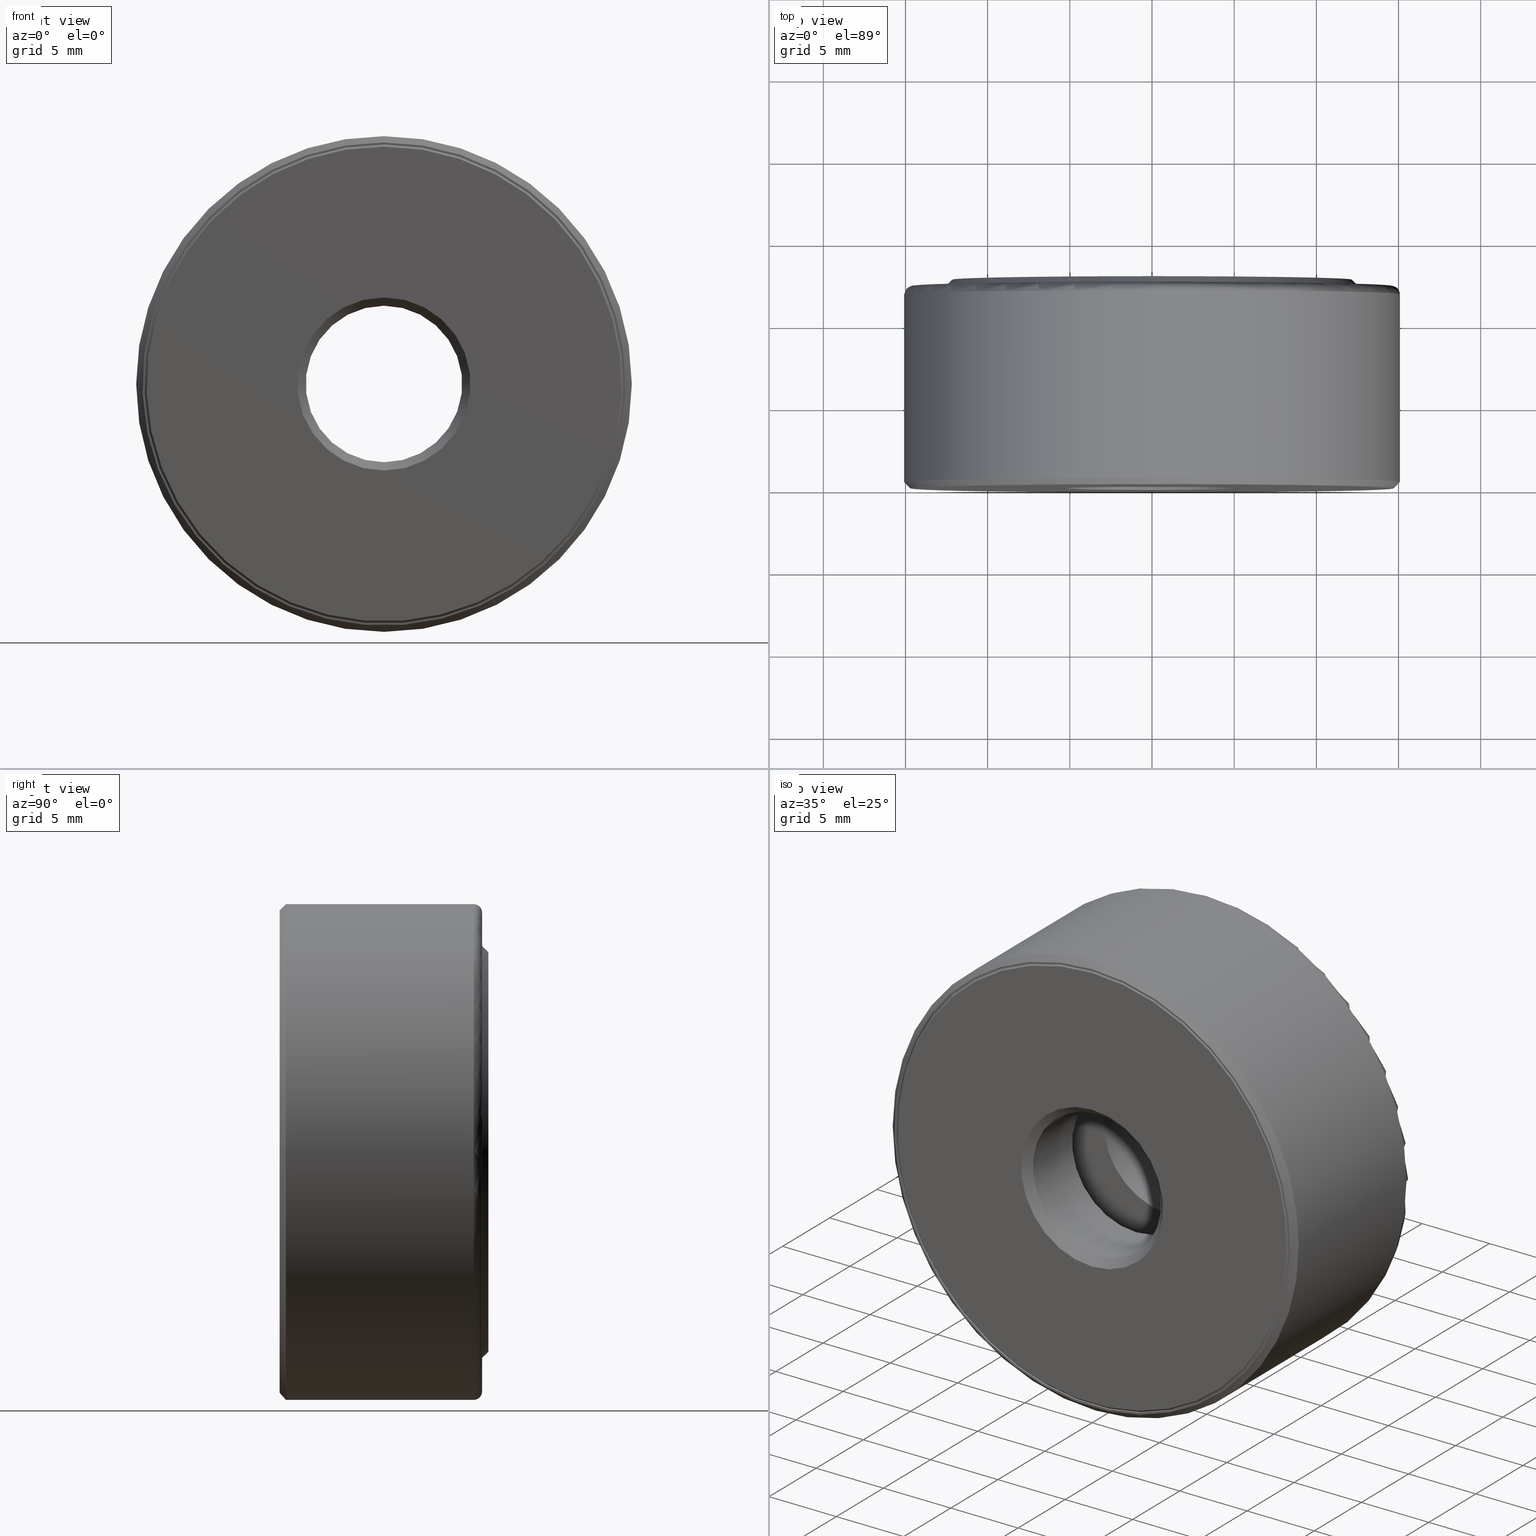
[diagram: canonical four-view strip — front | top / right | iso, engineering-drawing reading convention]
A machine part, canonical four-view strip (front | top / right | iso — engineering-drawing reading convention). The complete STEP part file that produces these views, byte-faithful:
ISO-10303-21;
HEADER;
FILE_DESCRIPTION (( 'STEP AP203' ),
    '1' );
FILE_NAME ('T-100-3-8.step',
    '2016-06-29T18:27:10',
    ( '' ),
    ( '' ),
    'SwSTEP 2.0',
    'SolidWorks 2016',
    '' );
FILE_SCHEMA (( 'CONFIG_CONTROL_DESIGN' ));
ENDSEC;

DATA;
#1 = DIRECTION ( 'NONE',  ( -0.0000000000000000000, 1.000000000000000000, -0.0000000000000000000 ) ) ;
#2 = EDGE_CURVE ( 'NONE', #495, #495, #84, .T. ) ;
#3 = FACE_OUTER_BOUND ( 'NONE', #187, .T. ) ;
#4 = EDGE_LOOP ( 'NONE', ( #80 ) ) ;
#5 = DIRECTION ( 'NONE',  ( 0.0000000000000000000, -1.000000000000000000, 0.0000000000000000000 ) ) ;
#6 = CARTESIAN_POINT ( 'NONE',  ( -0.4553749999999999200, 0.2499999999999999200, 0.0000000000000000000 ) ) ;
#7 = APPROVAL_PERSON_ORGANIZATION ( #526, #405, #431 ) ;
#8 = DIRECTION ( 'NONE',  ( -0.0000000000000000000, 1.000000000000000000, -0.0000000000000000000 ) ) ;
#9 = AXIS2_PLACEMENT_3D ( 'NONE', #597, #99, #372 ) ;
#10 = ORIENTED_EDGE ( 'NONE', *, *, #45, .F. ) ;
#11 = APPROVAL_STATUS ( 'not_yet_approved' ) ;
#12 = EDGE_CURVE ( 'NONE', #48, #48, #500, .T. ) ;
#13 = ADVANCED_FACE ( 'NONE', ( #146, #3 ), #308, .F. ) ;
#14 = CIRCLE ( 'NONE', #81, 0.3678749999999998400 ) ;
#15 = ORGANIZATION ( 'UNSPECIFIED', 'UNSPECIFIED', '' ) ;
#16 = CARTESIAN_POINT ( 'NONE',  ( 0.0000000000000000000, 0.3156249999999999300, 0.5667499999999998600 ) ) ;
#17 = ORIENTED_EDGE ( 'NONE', *, *, #586, .T. ) ;
#18 = DIRECTION ( 'NONE',  ( -0.0000000000000000000, 1.000000000000000000, -0.0000000000000000000 ) ) ;
#19 = EDGE_LOOP ( 'NONE', ( #369 ) ) ;
#20 = CARTESIAN_POINT ( 'NONE',  ( 0.0000000000000000000, 0.3156249999999999300, 0.5428750000000000000 ) ) ;
#21 = CARTESIAN_POINT ( 'NONE',  ( 0.0000000000000000000, -4.375225302352921300E-017, 0.0000000000000000000 ) ) ;
#22 = ORIENTED_EDGE ( 'NONE', *, *, #12, .T. ) ;
#23 = DIRECTION ( 'NONE',  ( 0.0000000000000000000, 0.0000000000000000000, 1.000000000000000000 ) ) ;
#24 = DIRECTION ( 'NONE',  ( -0.0000000000000000000, 1.000000000000000000, -0.0000000000000000000 ) ) ;
#25 = FACE_BOUND ( 'NONE', #341, .T. ) ;
#26 = AXIS2_PLACEMENT_3D ( 'NONE', #313, #360, #195 ) ;
#27 = CARTESIAN_POINT ( 'NONE',  ( 0.4553749999999999200, 0.2499999999999999200, -3.179866629351383500E-015 ) ) ;
#28 = MANIFOLD_SOLID_BREP ( 'Revolve3', #180 ) ;
#29 = CC_DESIGN_SECURITY_CLASSIFICATION ( #327, ( #151 ) ) ;
#30 = CARTESIAN_POINT ( 'NONE',  ( 0.0000000000000000000, 0.4120000000000002500, 0.0000000000000000000 ) ) ;
#31 = FACE_OUTER_BOUND ( 'NONE', #215, .T. ) ;
#32 = VERTEX_POINT ( 'NONE', #377 ) ;
#33 = ORIENTED_EDGE ( 'NONE', *, *, #134, .T. ) ;
#34 = DIRECTION ( 'NONE',  ( 0.0000000000000000000, 0.0000000000000000000, 1.000000000000000000 ) ) ;
#35 = AXIS2_PLACEMENT_3D ( 'NONE', #96, #416, #324 ) ;
#36 = CARTESIAN_POINT ( 'NONE',  ( 1.258916126112564200E-016, 0.5000000000000000000, 0.0000000000000000000 ) ) ;
#37 = CALENDAR_DATE ( 2016, 29, 6 ) ;
#38 = CONICAL_SURFACE ( 'NONE', #333, 0.5787499999999999900, 0.7853981633974445000 ) ;
#39 = ORIENTED_EDGE ( 'NONE', *, *, #492, .F. ) ;
#40 = DIRECTION ( 'NONE',  ( -0.0000000000000000000, 1.000000000000000000, -0.0000000000000000000 ) ) ;
#41 = CLOSED_SHELL ( 'NONE', ( #251, #523, #435, #487, #156, #482, #387, #474, #572, #74, #207, #164, #348, #112, #292, #116 ) ) ;
#42 = DIRECTION ( 'NONE',  ( -0.0000000000000000000, 1.000000000000000000, 0.0000000000000000000 ) ) ;
#43 = AXIS2_PLACEMENT_3D ( 'NONE', #284, #214, #160 ) ;
#44 = DIRECTION ( 'NONE',  ( 0.0000000000000000000, 0.0000000000000000000, 1.000000000000000000 ) ) ;
#45 = EDGE_CURVE ( 'NONE', #440, #440, #261, .T. ) ;
#46 = FACE_OUTER_BOUND ( 'NONE', #83, .T. ) ;
#47 = DIRECTION ( 'NONE',  ( 0.0000000000000000000, 0.0000000000000000000, 1.000000000000000000 ) ) ;
#48 = VERTEX_POINT ( 'NONE', #514 ) ;
#49 = EDGE_LOOP ( 'NONE', ( #113 ) ) ;
#50 = ORIENTED_EDGE ( 'NONE', *, *, #105, .T. ) ;
#51 = CARTESIAN_POINT ( 'NONE',  ( 0.0000000000000000000, -4.481938114605432000E-017, 0.0000000000000000000 ) ) ;
#52 = FACE_OUTER_BOUND ( 'NONE', #194, .T. ) ;
#53 = VERTEX_POINT ( 'NONE', #154 ) ;
#54 = MANIFOLD_SOLID_BREP ( 'BALLS[2]', #491 ) ;
#55 = DIRECTION ( 'NONE',  ( 0.0000000000000000000, 0.0000000000000000000, 1.000000000000000000 ) ) ;
#56 = DIRECTION ( 'NONE',  ( -0.0000000000000000000, 1.000000000000000000, -0.0000000000000000000 ) ) ;
#57 = EDGE_LOOP ( 'NONE', ( #266 ) ) ;
#58 = DIRECTION ( 'NONE',  ( 0.0000000000000000000, -1.000000000000000000, 0.0000000000000000000 ) ) ;
#59 = CARTESIAN_POINT ( 'NONE',  ( 0.0000000000000000000, 0.4799999999999998200, 0.1875000000000000600 ) ) ;
#60 = CIRCLE ( 'NONE', #35, 0.5737499999999999800 ) ;
#61 = EDGE_CURVE ( 'NONE', #280, #280, #153, .T. ) ;
#62 = LOCAL_TIME ( 14, 27, 10.00000000000000000, #326 ) ;
#63 = ORIENTED_EDGE ( 'NONE', *, *, #279, .T. ) ;
#64 = CLOSED_SHELL ( 'NONE', ( #574 ) ) ;
#65 = APPLICATION_PROTOCOL_DEFINITION ( 'international standard', 'config_control_design', 1994, #217 ) ;
#66 = ADVANCED_FACE ( 'NONE', ( ), #477, .T. ) ;
#67 = MECHANICAL_CONTEXT ( 'NONE', #217, 'mechanical' ) ;
#68 = DIRECTION ( 'NONE',  ( 0.0000000000000000000, -0.0000000000000000000, -1.000000000000000000 ) ) ;
#69 = CIRCLE ( 'NONE', #507, 0.1875000000000000600 ) ;
#70 = VERTEX_POINT ( 'NONE', #16 ) ;
#71 = AXIS2_PLACEMENT_3D ( 'NONE', #363, #229, #34 ) ;
#72 = DIRECTION ( 'NONE',  ( -0.0000000000000000000, 1.000000000000000000, -0.0000000000000000000 ) ) ;
#73 = CLOSED_SHELL ( 'NONE', ( #216 ) ) ;
#74 = ADVANCED_FACE ( 'NONE', ( #589, #486 ), #255, .F. ) ;
#75 = PERSON_AND_ORGANIZATION ( #267, #15 ) ;
#76 = CARTESIAN_POINT ( 'NONE',  ( 0.0000000000000000000, 0.1843750000000000700, 0.0000000000000000000 ) ) ;
#77 = CARTESIAN_POINT ( 'NONE',  ( 0.0000000000000000000, 0.1843750000000000700, 0.0000000000000000000 ) ) ;
#78 = CC_DESIGN_APPROVAL ( #128, ( #583 ) ) ;
#79 = CYLINDRICAL_SURFACE ( 'NONE', #173, 0.5737499999999999800 ) ;
#80 = ORIENTED_EDGE ( 'NONE', *, *, #370, .F. ) ;
#81 = AXIS2_PLACEMENT_3D ( 'NONE', #76, #317, #406 ) ;
#82 = ORIENTED_EDGE ( 'NONE', *, *, #125, .F. ) ;
#83 = EDGE_LOOP ( 'NONE', ( #254 ) ) ;
#84 = CIRCLE ( 'NONE', #114, 0.5787499999999999900 ) ;
#85 = CC_DESIGN_APPROVAL ( #373, ( #327 ) ) ;
#86 = DIRECTION ( 'NONE',  ( 0.0000000000000000000, -1.000000000000000000, 0.0000000000000000000 ) ) ;
#87 = CYLINDRICAL_SURFACE ( 'NONE', #535, 0.5937500000000000000 ) ;
#88 = CIRCLE ( 'NONE', #490, 0.2075000000000000500 ) ;
#89 = CARTESIAN_POINT ( 'NONE',  ( 0.0000000000000000000, 0.2499999999999999200, 0.0000000000000000000 ) ) ;
#90 = ORIENTED_EDGE ( 'NONE', *, *, #370, .T. ) ;
#91 = CARTESIAN_POINT ( 'NONE',  ( 0.0000000000000000000, 0.3156249999999999300, 0.0000000000000000000 ) ) ;
#92 = DIRECTION ( 'NONE',  ( -0.0000000000000000000, 1.000000000000000000, -0.0000000000000000000 ) ) ;
#93 =( GEOMETRIC_REPRESENTATION_CONTEXT ( 3 ) GLOBAL_UNCERTAINTY_ASSIGNED_CONTEXT ( ( #235 ) ) GLOBAL_UNIT_ASSIGNED_CONTEXT ( ( #481, #476, #384 ) ) REPRESENTATION_CONTEXT ( 'NONE', 'WORKASPACE' ) );
#94 = FACE_OUTER_BOUND ( 'NONE', #498, .T. ) ;
#95 = EDGE_LOOP ( 'NONE', ( #593 ) ) ;
#96 = CARTESIAN_POINT ( 'NONE',  ( 0.0000000000000000000, 0.004999999999999972300, 0.0000000000000000000 ) ) ;
#97 = ADVANCED_BREP_SHAPE_REPRESENTATION ( 'T-100-3-8', ( #336, #521, #28, #573, #54, #463, #43 ), #93 ) ;
#98 = EDGE_CURVE ( 'NONE', #191, #191, #253, .T. ) ;
#99 = DIRECTION ( 'NONE',  ( -0.0000000000000000000, 1.000000000000000000, -0.0000000000000000000 ) ) ;
#100 = DIRECTION ( 'NONE',  ( 0.0000000000000000000, -1.000000000000000000, 0.0000000000000000000 ) ) ;
#101 = CIRCLE ( 'NONE', #504, 0.5137499999999999300 ) ;
#102 = VERTEX_POINT ( 'NONE', #602 ) ;
#103 = APPROVAL_DATE_TIME ( #132, #373 ) ;
#104 = CARTESIAN_POINT ( 'NONE',  ( 0.0000000000000000000, 0.4650000000000000800, 0.5937500000000000000 ) ) ;
#105 = EDGE_CURVE ( 'NONE', #362, #362, #354, .T. ) ;
#106 = CC_DESIGN_PERSON_AND_ORGANIZATION_ASSIGNMENT ( #307, #527, ( #327 ) ) ;
#107 = EDGE_LOOP ( 'NONE', ( #192 ) ) ;
#108 = DIRECTION ( 'NONE',  ( 1.000000000000000000, 0.0000000000000000000, 0.0000000000000000000 ) ) ;
#109 = CIRCLE ( 'NONE', #510, 0.5937499999999998900 ) ;
#110 = APPROVAL_ROLE ( '' ) ;
#111 = CC_DESIGN_APPROVAL ( #405, ( #151 ) ) ;
#112 = ADVANCED_FACE ( 'NONE', ( #124, #381 ), #117, .F. ) ;
#113 = ORIENTED_EDGE ( 'NONE', *, *, #193, .F. ) ;
#114 = AXIS2_PLACEMENT_3D ( 'NONE', #205, #56, #385 ) ;
#115 = ORIENTED_EDGE ( 'NONE', *, *, #426, .T. ) ;
#116 = ADVANCED_FACE ( 'NONE', ( #489, #31 ), #346, .F. ) ;
#117 = CONICAL_SURFACE ( 'NONE', #403, 0.1875000000000000300, 0.7853981633974487200 ) ;
#118 = DIRECTION ( 'NONE',  ( 0.0000000000000000000, 0.0000000000000000000, 1.000000000000000000 ) ) ;
#119 = VERTEX_POINT ( 'NONE', #564 ) ;
#120 = COORDINATED_UNIVERSAL_TIME_OFFSET ( 5, 0, .BEHIND. ) ;
#121 = CARTESIAN_POINT ( 'NONE',  ( 0.0000000000000000000, 0.02000000000000002500, 0.0000000000000000000 ) ) ;
#122 = EDGE_LOOP ( 'NONE', ( #259 ) ) ;
#123 = CARTESIAN_POINT ( 'NONE',  ( 0.0000000000000000000, 0.1843749999999999600, 0.0000000000000000000 ) ) ;
#124 = FACE_OUTER_BOUND ( 'NONE', #281, .T. ) ;
#125 = EDGE_CURVE ( 'NONE', #231, #231, #480, .T. ) ;
#126 = CC_DESIGN_PERSON_AND_ORGANIZATION_ASSIGNMENT ( #445, #345, ( #583 ) ) ;
#127 = CARTESIAN_POINT ( 'NONE',  ( 0.0000000000000000000, 0.3156249999999998800, 0.0000000000000000000 ) ) ;
#128 = APPROVAL ( #522, 'UNSPECIFIED' ) ;
#129 = FACE_BOUND ( 'NONE', #509, .T. ) ;
#130 = ORIENTED_EDGE ( 'NONE', *, *, #586, .F. ) ;
#131 = DIRECTION ( 'NONE',  ( 0.0000000000000000000, 0.0000000000000000000, 1.000000000000000000 ) ) ;
#132 = DATE_AND_TIME ( #376, #483 ) ;
#133 = DIRECTION ( 'NONE',  ( -0.0000000000000000000, 1.000000000000000000, -0.0000000000000000000 ) ) ;
#134 = EDGE_CURVE ( 'NONE', #102, #102, #456, .T. ) ;
#135 = DIRECTION ( 'NONE',  ( -0.0000000000000000000, 1.000000000000000000, -0.0000000000000000000 ) ) ;
#136 = FACE_OUTER_BOUND ( 'NONE', #49, .T. ) ;
#137 = CARTESIAN_POINT ( 'NONE',  ( 0.0000000000000000000, 0.4850000000000000400, 0.0000000000000000000 ) ) ;
#138 = PLANE ( 'NONE',  #233 ) ;
#139 = AXIS2_PLACEMENT_3D ( 'NONE', #468, #149, #206 ) ;
#140 = CARTESIAN_POINT ( 'NONE',  ( 0.0000000000000000000, 0.4650000000000000800, 0.0000000000000000000 ) ) ;
#141 = FACE_OUTER_BOUND ( 'NONE', #409, .T. ) ;
#142 = EDGE_LOOP ( 'NONE', ( #543 ) ) ;
#143 = DIRECTION ( 'NONE',  ( 0.0000000000000000000, 0.0000000000000000000, 1.000000000000000000 ) ) ;
#144 = EDGE_LOOP ( 'NONE', ( #115 ) ) ;
#145 = CARTESIAN_POINT ( 'NONE',  ( 0.0000000000000000000, 0.4850000000000000400, 0.0000000000000000000 ) ) ;
#146 = FACE_OUTER_BOUND ( 'NONE', #122, .T. ) ;
#147 = CIRCLE ( 'NONE', #443, 0.5737499999999999800 ) ;
#148 = EDGE_LOOP ( 'NONE', ( #400 ) ) ;
#149 = DIRECTION ( 'NONE',  ( -0.0000000000000000000, 1.000000000000000000, -0.0000000000000000000 ) ) ;
#150 = EDGE_CURVE ( 'NONE', #516, #516, #14, .T. ) ;
#151 = PRODUCT_DEFINITION_FORMATION_WITH_SPECIFIED_SOURCE ( 'ANY', '', #402, .NOT_KNOWN. ) ;
#152 = CARTESIAN_POINT ( 'NONE',  ( 0.0000000000000000000, 0.1843750000000000700, 0.1875000000000000800 ) ) ;
#153 = CIRCLE ( 'NONE', #544, 0.5937500000000000000 ) ;
#154 = CARTESIAN_POINT ( 'NONE',  ( 0.0000000000000000000, 0.5000000000000000000, 0.4787499999999999000 ) ) ;
#155 = FACE_BOUND ( 'NONE', #225, .T. ) ;
#156 = ADVANCED_FACE ( 'NONE', ( #584, #94 ), #603, .F. ) ;
#157 = VERTEX_POINT ( 'NONE', #394 ) ;
#158 = DATE_TIME_ROLE ( 'creation_date' ) ;
#159 = ORIENTED_EDGE ( 'NONE', *, *, #262, .F. ) ;
#160 = DIRECTION ( 'NONE',  ( 1.000000000000000000, 0.0000000000000000000, 0.0000000000000000000 ) ) ;
#161 = DIRECTION ( 'NONE',  ( 0.0000000000000000000, -1.000000000000000000, 0.0000000000000000000 ) ) ;
#162 = APPLICATION_PROTOCOL_DEFINITION ( 'international standard', 'config_control_design', 1994, #338 ) ;
#163 = DIRECTION ( 'NONE',  ( -0.0000000000000000000, 1.000000000000000000, 0.0000000000000000000 ) ) ;
#164 = ADVANCED_FACE ( 'NONE', ( #508, #155 ), #311, .T. ) ;
#165 = FACE_OUTER_BOUND ( 'NONE', #315, .T. ) ;
#166 = AXIS2_PLACEMENT_3D ( 'NONE', #77, #401, #68 ) ;
#167 = DIRECTION ( 'NONE',  ( 0.0000000000000000000, 0.0000000000000000000, 1.000000000000000000 ) ) ;
#168 = APPROVAL_DATE_TIME ( #288, #128 ) ;
#169 = DIRECTION ( 'NONE',  ( -0.0000000000000000000, 1.000000000000000000, -0.0000000000000000000 ) ) ;
#170 = CLOSED_SHELL ( 'NONE', ( #203, #478, #579, #13, #305, #343, #220, #439 ) ) ;
#171 = ORIENTED_EDGE ( 'NONE', *, *, #279, .F. ) ;
#172 = CARTESIAN_POINT ( 'NONE',  ( 0.0000000000000000000, 0.4850000000000000400, 0.0000000000000000000 ) ) ;
#173 = AXIS2_PLACEMENT_3D ( 'NONE', #421, #234, #44 ) ;
#174 = DIRECTION ( 'NONE',  ( 0.0000000000000000000, 0.0000000000000000000, 1.000000000000000000 ) ) ;
#175 = FACE_BOUND ( 'NONE', #538, .T. ) ;
#176 = EDGE_CURVE ( 'NONE', #452, #452, #339, .T. ) ;
#177 = DATE_AND_TIME ( #419, #62 ) ;
#178 = CARTESIAN_POINT ( 'NONE',  ( 0.0000000000000000000, 0.01499999999999997700, 0.0000000000000000000 ) ) ;
#179 = EDGE_LOOP ( 'NONE', ( #238 ) ) ;
#180 = CLOSED_SHELL ( 'NONE', ( #519 ) ) ;
#181 = EDGE_LOOP ( 'NONE', ( #243 ) ) ;
#182 = DIRECTION ( 'NONE',  ( 0.0000000000000000000, 0.0000000000000000000, 1.000000000000000000 ) ) ;
#183 = DIRECTION ( 'NONE',  ( -0.0000000000000000000, 1.000000000000000000, -0.0000000000000000000 ) ) ;
#184 = CARTESIAN_POINT ( 'NONE',  ( 0.0000000000000000000, -4.485272889988322600E-017, 0.0000000000000000000 ) ) ;
#185 = FACE_OUTER_BOUND ( 'NONE', #484, .T. ) ;
#186 = VERTEX_POINT ( 'NONE', #20 ) ;
#187 = EDGE_LOOP ( 'NONE', ( #265 ) ) ;
#188 = AXIS2_PLACEMENT_3D ( 'NONE', #469, #8, #565 ) ;
#189 = FACE_OUTER_BOUND ( 'NONE', #57, .T. ) ;
#190 = DIRECTION ( 'NONE',  ( 0.0000000000000000000, 0.0000000000000000000, 1.000000000000000000 ) ) ;
#191 = VERTEX_POINT ( 'NONE', #245 ) ;
#192 = ORIENTED_EDGE ( 'NONE', *, *, #598, .T. ) ;
#193 = EDGE_CURVE ( 'NONE', #556, #556, #147, .T. ) ;
#194 = EDGE_LOOP ( 'NONE', ( #33 ) ) ;
#195 = DIRECTION ( 'NONE',  ( 0.0000000000000000000, 0.0000000000000000000, 1.000000000000000000 ) ) ;
#196 = CARTESIAN_POINT ( 'NONE',  ( 0.0000000000000000000, 0.4650000000000000800, 0.0000000000000000000 ) ) ;
#197 = DIRECTION ( 'NONE',  ( 0.0000000000000000000, -0.0000000000000000000, -1.000000000000000000 ) ) ;
#198 = FACE_BOUND ( 'NONE', #390, .T. ) ;
#199 = CARTESIAN_POINT ( 'NONE',  ( 0.0000000000000000000, 0.1843750000000000700, 0.3678749999999998400 ) ) ;
#200 = EDGE_LOOP ( 'NONE', ( #328 ) ) ;
#201 = AXIS2_PLACEMENT_3D ( 'NONE', #140, #459, #236 ) ;
#202 = CARTESIAN_POINT ( 'NONE',  ( 0.0000000000000000000, -4.481938114605432000E-017, 0.5787499999999999900 ) ) ;
#203 = ADVANCED_FACE ( 'NONE', ( #599, #592 ), #499, .T. ) ;
#204 = ORIENTED_EDGE ( 'NONE', *, *, #366, .T. ) ;
#205 = CARTESIAN_POINT ( 'NONE',  ( 0.0000000000000000000, -4.481938114605432000E-017, 0.0000000000000000000 ) ) ;
#206 = DIRECTION ( 'NONE',  ( 0.0000000000000000000, 0.0000000000000000000, 1.000000000000000000 ) ) ;
#207 = ADVANCED_FACE ( 'NONE', ( #136, #237 ), #494, .F. ) ;
#208 = APPROVAL_ROLE ( '' ) ;
#209 = FACE_OUTER_BOUND ( 'NONE', #212, .T. ) ;
#210 = VERTEX_POINT ( 'NONE', #285 ) ;
#211 = ORIENTED_EDGE ( 'NONE', *, *, #98, .F. ) ;
#212 = EDGE_LOOP ( 'NONE', ( #82 ) ) ;
#213 = AXIS2_PLACEMENT_3D ( 'NONE', #404, #585, #545 ) ;
#214 = DIRECTION ( 'NONE',  ( 0.0000000000000000000, 0.0000000000000000000, 1.000000000000000000 ) ) ;
#215 = EDGE_LOOP ( 'NONE', ( #465 ) ) ;
#216 = ADVANCED_FACE ( 'NONE', ( ), #223, .T. ) ;
#217 = APPLICATION_CONTEXT ( 'configuration controlled 3d designs of mechanical parts and assemblies' ) ;
#218 = CIRCLE ( 'NONE', #9, 0.1875000000000000300 ) ;
#219 = PERSON_AND_ORGANIZATION ( #267, #15 ) ;
#220 = ADVANCED_FACE ( 'NONE', ( #46, #129 ), #264, .T. ) ;
#221 = AXIS2_PLACEMENT_3D ( 'NONE', #172, #353, #23 ) ;
#222 = DIRECTION ( 'NONE',  ( -0.0000000000000000000, 1.000000000000000000, -0.0000000000000000000 ) ) ;
#223 = SPHERICAL_SURFACE ( 'NONE', #415, 0.1093749999999999700 ) ;
#224 = FACE_OUTER_BOUND ( 'NONE', #557, .T. ) ;
#225 = EDGE_LOOP ( 'NONE', ( #355 ) ) ;
#226 = DIRECTION ( 'NONE',  ( 0.0000000000000000000, 0.0000000000000000000, -1.000000000000000000 ) ) ;
#227 = DIRECTION ( 'NONE',  ( -0.0000000000000000000, 1.000000000000000000, -0.0000000000000000000 ) ) ;
#228 = EDGE_LOOP ( 'NONE', ( #391 ) ) ;
#229 = DIRECTION ( 'NONE',  ( -0.0000000000000000000, 1.000000000000000000, -0.0000000000000000000 ) ) ;
#230 = FACE_OUTER_BOUND ( 'NONE', #383, .T. ) ;
#231 = VERTEX_POINT ( 'NONE', #374 ) ;
#232 = DIRECTION ( 'NONE',  ( -0.0000000000000000000, 1.000000000000000000, -0.0000000000000000000 ) ) ;
#233 = AXIS2_PLACEMENT_3D ( 'NONE', #36, #553, #190 ) ;
#234 = DIRECTION ( 'NONE',  ( -0.0000000000000000000, 1.000000000000000000, -0.0000000000000000000 ) ) ;
#235 = UNCERTAINTY_MEASURE_WITH_UNIT (LENGTH_MEASURE( 1.000000000000000100E-005 ), #481, 'distance_accuracy_value', 'NONE');
#236 = DIRECTION ( 'NONE',  ( 0.0000000000000000000, 0.0000000000000000000, 1.000000000000000000 ) ) ;
#237 = FACE_OUTER_BOUND ( 'NONE', #588, .T. ) ;
#238 = ORIENTED_EDGE ( 'NONE', *, *, #176, .T. ) ;
#239 = AXIS2_PLACEMENT_3D ( 'NONE', #123, #485, #534 ) ;
#240 = FACE_OUTER_BOUND ( 'NONE', #569, .T. ) ;
#241 = CARTESIAN_POINT ( 'NONE',  ( 4.078416792160700500E-016, 0.1843749999999999300, 0.0000000000000000000 ) ) ;
#242 = FACE_BOUND ( 'NONE', #142, .T. ) ;
#243 = ORIENTED_EDGE ( 'NONE', *, *, #262, .T. ) ;
#244 = DATE_AND_TIME ( #442, #446 ) ;
#245 = CARTESIAN_POINT ( 'NONE',  ( 0.0000000000000000000, 0.1843749999999999300, 0.5428750000000000000 ) ) ;
#246 = FACE_OUTER_BOUND ( 'NONE', #430, .T. ) ;
#247 = PERSON_AND_ORGANIZATION_ROLE ( 'design_owner' ) ;
#248 = AXIS2_PLACEMENT_3D ( 'NONE', #351, #397, #118 ) ;
#249 = AXIS2_PLACEMENT_3D ( 'NONE', #196, #563, #605 ) ;
#250 = EDGE_LOOP ( 'NONE', ( #22 ) ) ;
#251 = ADVANCED_FACE ( 'NONE', ( #189, #361 ), #342, .F. ) ;
#252 = EDGE_CURVE ( 'NONE', #408, #408, #388, .T. ) ;
#253 = CIRCLE ( 'NONE', #555, 0.5428750000000000000 ) ;
#254 = ORIENTED_EDGE ( 'NONE', *, *, #273, .T. ) ;
#255 = PLANE ( 'NONE',  #289 ) ;
#256 = DIRECTION ( 'NONE',  ( -1.000000000000000000, 0.0000000000000000000, 6.982962677686269100E-015 ) ) ;
#257 = AXIS2_PLACEMENT_3D ( 'NONE', #91, #135, #275 ) ;
#258 = FACE_OUTER_BOUND ( 'NONE', #107, .T. ) ;
#259 = ORIENTED_EDGE ( 'NONE', *, *, #492, .T. ) ;
#260 = CC_DESIGN_DATE_AND_TIME_ASSIGNMENT ( #177, #158, ( #583 ) ) ;
#261 = CIRCLE ( 'NONE', #298, 0.2075000000000001000 ) ;
#262 = EDGE_CURVE ( 'NONE', #210, #210, #432, .T. ) ;
#263 = DIRECTION ( 'NONE',  ( -0.0000000000000000000, 1.000000000000000000, -0.0000000000000000000 ) ) ;
#264 = CONICAL_SURFACE ( 'NONE', #453, 0.4787499999999999000, 0.7853981633974490600 ) ;
#265 = ORIENTED_EDGE ( 'NONE', *, *, #252, .F. ) ;
#266 = ORIENTED_EDGE ( 'NONE', *, *, #150, .F. ) ;
#267 = PERSON ( 'UNSPECIFIED', 'UNSPECIFIED', 'UNSPECIFIED', ('UNSPECIFIED'), ('UNSPECIFIED'), ('UNSPECIFIED') ) ;
#268 = EDGE_LOOP ( 'NONE', ( #204 ) ) ;
#269 = DIRECTION ( 'NONE',  ( 0.0000000000000000000, 0.0000000000000000000, 1.000000000000000000 ) ) ;
#270 = CARTESIAN_POINT ( 'NONE',  ( 0.0000000000000000000, 0.2499999999999999200, 0.0000000000000000000 ) ) ;
#271 = AXIS2_PLACEMENT_3D ( 'NONE', #270, #552, #600 ) ;
#272 = CARTESIAN_POINT ( 'NONE',  ( 0.0000000000000000000, 0.0000000000000000000, 0.0000000000000000000 ) ) ;
#273 = EDGE_CURVE ( 'NONE', #398, #398, #444, .T. ) ;
#274 = AXIS2_PLACEMENT_3D ( 'NONE', #470, #512, #559 ) ;
#275 = DIRECTION ( 'NONE',  ( 0.0000000000000000000, 0.0000000000000000000, 1.000000000000000000 ) ) ;
#276 = PRODUCT_DEFINITION_SHAPE ( 'NONE', 'NONE',  #583 ) ;
#277 = DIRECTION ( 'NONE',  ( 0.0000000000000000000, 0.0000000000000000000, 1.000000000000000000 ) ) ;
#278 = CYLINDRICAL_SURFACE ( 'NONE', #293, 0.5667499999999998600 ) ;
#279 = EDGE_CURVE ( 'NONE', #344, #344, #109, .T. ) ;
#280 = VERTEX_POINT ( 'NONE', #104 ) ;
#281 = EDGE_LOOP ( 'NONE', ( #130 ) ) ;
#282 = CARTESIAN_POINT ( 'NONE',  ( 0.0000000000000000000, 0.4650000000000000800, 0.5137499999999999300 ) ) ;
#283 = EDGE_LOOP ( 'NONE', ( #349 ) ) ;
#284 = CARTESIAN_POINT ( 'NONE',  ( 0.0000000000000000000, 0.0000000000000000000, 0.0000000000000000000 ) ) ;
#285 = CARTESIAN_POINT ( 'NONE',  ( 0.0000000000000000000, 0.3156249999999998800, 0.3678749999999998400 ) ) ;
#286 = FACE_OUTER_BOUND ( 'NONE', #434, .T. ) ;
#287 = DIRECTION ( 'NONE',  ( 0.0000000000000000000, -0.0000000000000000000, -1.000000000000000000 ) ) ;
#288 = DATE_AND_TIME ( #414, #537 ) ;
#289 = AXIS2_PLACEMENT_3D ( 'NONE', #581, #163, #302 ) ;
#290 = CARTESIAN_POINT ( 'NONE',  ( 0.0000000000000000000, 1.707404996040164500E-017, 0.0000000000000000000 ) ) ;
#291 = ORIENTED_EDGE ( 'NONE', *, *, #340, .F. ) ;
#292 = ADVANCED_FACE ( 'NONE', ( #503, #240 ), #462, .F. ) ;
#293 = AXIS2_PLACEMENT_3D ( 'NONE', #272, #596, #457 ) ;
#294 = CC_DESIGN_PERSON_AND_ORGANIZATION_ASSIGNMENT ( #75, #530, ( #151 ) ) ;
#295 = FACE_OUTER_BOUND ( 'NONE', #200, .T. ) ;
#296 = VERTEX_POINT ( 'NONE', #59 ) ;
#297 = EDGE_LOOP ( 'NONE', ( #475 ) ) ;
#298 = AXIS2_PLACEMENT_3D ( 'NONE', #301, #222, #580 ) ;
#299 = DIMENSIONAL_EXPONENTS ( 1.000000000000000000, 0.0000000000000000000, 0.0000000000000000000, 0.0000000000000000000, 0.0000000000000000000, 0.0000000000000000000, 0.0000000000000000000 ) ;
#300 = AXIS2_PLACEMENT_3D ( 'NONE', #6, #461, #108 ) ;
#301 = CARTESIAN_POINT ( 'NONE',  ( 0.0000000000000000000, 0.4999999999999999400, 0.0000000000000000000 ) ) ;
#302 = DIRECTION ( 'NONE',  ( 0.0000000000000000000, 0.0000000000000000000, 1.000000000000000000 ) ) ;
#303 = SPHERICAL_SURFACE ( 'NONE', #300, 0.1093749999999999700 ) ;
#304 = APPROVAL_PERSON_ORGANIZATION ( #548, #128, #110 ) ;
#305 = ADVANCED_FACE ( 'NONE', ( #230, #175 ), #541, .F. ) ;
#306 = ORIENTED_EDGE ( 'NONE', *, *, #134, .F. ) ;
#307 = PERSON_AND_ORGANIZATION ( #267, #15 ) ;
#308 = CYLINDRICAL_SURFACE ( 'NONE', #188, 0.1875000000000000600 ) ;
#309 = CC_DESIGN_PERSON_AND_ORGANIZATION_ASSIGNMENT ( #219, #247, ( #402 ) ) ;
#310 = DESIGN_CONTEXT ( 'detailed design', #338, 'design' ) ;
#311 = CONICAL_SURFACE ( 'NONE', #71, 0.5687499999999998700, 0.7853981633974549400 ) ;
#312 = COORDINATED_UNIVERSAL_TIME_OFFSET ( 5, 0, .BEHIND. ) ;
#313 = CARTESIAN_POINT ( 'NONE',  ( 0.0000000000000000000, 0.4799999999999998200, 0.0000000000000000000 ) ) ;
#314 = EDGE_LOOP ( 'NONE', ( #511 ) ) ;
#315 = EDGE_LOOP ( 'NONE', ( #63 ) ) ;
#316 = EDGE_CURVE ( 'NONE', #32, #32, #60, .T. ) ;
#317 = DIRECTION ( 'NONE',  ( -0.0000000000000000000, 1.000000000000000000, -0.0000000000000000000 ) ) ;
#318 = FACE_OUTER_BOUND ( 'NONE', #181, .T. ) ;
#319 = VERTEX_POINT ( 'NONE', #425 ) ;
#320 = ORIENTED_EDGE ( 'NONE', *, *, #61, .T. ) ;
#321 = DIRECTION ( 'NONE',  ( -0.0000000000000000000, 1.000000000000000000, -0.0000000000000000000 ) ) ;
#322 = AXIS2_PLACEMENT_3D ( 'NONE', #27, #488, #256 ) ;
#323 = CARTESIAN_POINT ( 'NONE',  ( 0.0000000000000000000, 0.0000000000000000000, 0.0000000000000000000 ) ) ;
#324 = DIRECTION ( 'NONE',  ( 0.0000000000000000000, 0.0000000000000000000, 1.000000000000000000 ) ) ;
#325 = TOROIDAL_SURFACE ( 'NONE', #201, 0.5737499999999999800, 0.01999999999999999000 ) ;
#326 = COORDINATED_UNIVERSAL_TIME_OFFSET ( 5, 0, .BEHIND. ) ;
#327 = SECURITY_CLASSIFICATION ( '', '', #392 ) ;
#328 = ORIENTED_EDGE ( 'NONE', *, *, #105, .F. ) ;
#329 = EDGE_LOOP ( 'NONE', ( #171 ) ) ;
#330 = COORDINATED_UNIVERSAL_TIME_OFFSET ( 5, 0, .BEHIND. ) ;
#331 = DIRECTION ( 'NONE',  ( 0.0000000000000000000, 0.0000000000000000000, 1.000000000000000000 ) ) ;
#332 = AXIS2_PLACEMENT_3D ( 'NONE', #127, #183, #449 ) ;
#333 = AXIS2_PLACEMENT_3D ( 'NONE', #51, #1, #55 ) ;
#334 = CARTESIAN_POINT ( 'NONE',  ( 0.0000000000000000000, 0.3156249999999998800, 0.1875000000000000800 ) ) ;
#335 = DIRECTION ( 'NONE',  ( 0.0000000000000000000, -0.0000000000000000000, -1.000000000000000000 ) ) ;
#336 = MANIFOLD_SOLID_BREP ( 'Revolve2[1]', #41 ) ;
#337 = PLANE ( 'NONE',  #571 ) ;
#338 = APPLICATION_CONTEXT ( 'configuration controlled 3d designs of mechanical parts and assemblies' ) ;
#339 = CIRCLE ( 'NONE', #213, 0.5137499999999999300 ) ;
#340 = EDGE_CURVE ( 'NONE', #319, #319, #101, .T. ) ;
#341 = EDGE_LOOP ( 'NONE', ( #17 ) ) ;
#342 = TOROIDAL_SURFACE ( 'NONE', #539, 0.4553749999999999200, 0.1093750000000000100 ) ;
#343 = ADVANCED_FACE ( 'NONE', ( #258, #525 ), #138, .T. ) ;
#344 = VERTEX_POINT ( 'NONE', #424 ) ;
#345 = PERSON_AND_ORGANIZATION_ROLE ( 'creator' ) ;
#346 = PLANE ( 'NONE',  #166 ) ;
#347 = EDGE_LOOP ( 'NONE', ( #532 ) ) ;
#348 = ADVANCED_FACE ( 'NONE', ( #209, #25 ), #460, .F. ) ;
#349 = ORIENTED_EDGE ( 'NONE', *, *, #448, .F. ) ;
#350 = ORIENTED_EDGE ( 'NONE', *, *, #316, .T. ) ;
#351 = CARTESIAN_POINT ( 'NONE',  ( 0.0000000000000000000, 0.4650000000000000800, 0.0000000000000000000 ) ) ;
#352 = PRODUCT_RELATED_PRODUCT_CATEGORY ( 'detail', '', ( #402 ) ) ;
#353 = DIRECTION ( 'NONE',  ( -0.0000000000000000000, 1.000000000000000000, -0.0000000000000000000 ) ) ;
#354 = CIRCLE ( 'NONE', #221, 0.5737499999999999800 ) ;
#355 = ORIENTED_EDGE ( 'NONE', *, *, #125, .T. ) ;
#356 = DIRECTION ( 'NONE',  ( -0.0000000000000000000, 1.000000000000000000, -0.0000000000000000000 ) ) ;
#357 = CC_DESIGN_PERSON_AND_ORGANIZATION_ASSIGNMENT ( #365, #473, ( #151 ) ) ;
#358 = DIRECTION ( 'NONE',  ( -0.0000000000000000000, 1.000000000000000000, -0.0000000000000000000 ) ) ;
#359 = AXIS2_PLACEMENT_3D ( 'NONE', #396, #24, #540 ) ;
#360 = DIRECTION ( 'NONE',  ( -0.0000000000000000000, 1.000000000000000000, -0.0000000000000000000 ) ) ;
#361 = FACE_OUTER_BOUND ( 'NONE', #518, .T. ) ;
#362 = VERTEX_POINT ( 'NONE', #558 ) ;
#363 = CARTESIAN_POINT ( 'NONE',  ( 0.0000000000000000000, -4.375225302352921300E-017, 0.0000000000000000000 ) ) ;
#364 = ORIENTED_EDGE ( 'NONE', *, *, #12, .F. ) ;
#365 = PERSON_AND_ORGANIZATION ( #267, #15 ) ;
#366 = EDGE_CURVE ( 'NONE', #186, #186, #368, .T. ) ;
#367 = CARTESIAN_POINT ( 'NONE',  ( -3.043709735366168800E-033, -1.333910153156378100E-017, 0.0000000000000000000 ) ) ;
#368 = CIRCLE ( 'NONE', #513, 0.5428750000000000000 ) ;
#369 = ORIENTED_EDGE ( 'NONE', *, *, #448, .T. ) ;
#370 = EDGE_CURVE ( 'NONE', #604, #604, #566, .T. ) ;
#371 = EDGE_LOOP ( 'NONE', ( #595 ) ) ;
#372 = DIRECTION ( 'NONE',  ( 0.0000000000000000000, 0.0000000000000000000, 1.000000000000000000 ) ) ;
#373 = APPROVAL ( #568, 'UNSPECIFIED' ) ;
#374 = CARTESIAN_POINT ( 'NONE',  ( 0.0000000000000000000, -4.375225302352921300E-017, 0.5687499999999998700 ) ) ;
#375 = EDGE_LOOP ( 'NONE', ( #211 ) ) ;
#376 = CALENDAR_DATE ( 2016, 29, 6 ) ;
#377 = CARTESIAN_POINT ( 'NONE',  ( 0.0000000000000000000, 0.004999999999999972300, 0.5737499999999999800 ) ) ;
#378 = CARTESIAN_POINT ( 'NONE',  ( 0.0000000000000000000, 0.3156249999999998800, 0.0000000000000000000 ) ) ;
#379 = DIRECTION ( 'NONE',  ( -0.0000000000000000000, 1.000000000000000000, -0.0000000000000000000 ) ) ;
#380 = AXIS2_PLACEMENT_3D ( 'NONE', #549, #86, #454 ) ;
#381 = FACE_BOUND ( 'NONE', #19, .T. ) ;
#382 = DIRECTION ( 'NONE',  ( 0.0000000000000000000, 0.0000000000000000000, 1.000000000000000000 ) ) ;
#383 = EDGE_LOOP ( 'NONE', ( #531 ) ) ;
#384 =( NAMED_UNIT ( * ) SI_UNIT ( $, .STERADIAN. ) SOLID_ANGLE_UNIT ( ) );
#385 = DIRECTION ( 'NONE',  ( 0.0000000000000000000, 0.0000000000000000000, 1.000000000000000000 ) ) ;
#386 = AXIS2_PLACEMENT_3D ( 'NONE', #241, #58, #335 ) ;
#387 = ADVANCED_FACE ( 'NONE', ( #295, #246 ), #325, .T. ) ;
#388 = CIRCLE ( 'NONE', #332, 0.1875000000000000800 ) ;
#389 = AXIS2_PLACEMENT_3D ( 'NONE', #591, #133, #501 ) ;
#390 = EDGE_LOOP ( 'NONE', ( #291 ) ) ;
#391 = ORIENTED_EDGE ( 'NONE', *, *, #316, .F. ) ;
#392 = SECURITY_CLASSIFICATION_LEVEL ( 'unclassified' ) ;
#393 = DIRECTION ( 'NONE',  ( 0.0000000000000000000, 0.0000000000000000000, -1.000000000000000000 ) ) ;
#394 = CARTESIAN_POINT ( 'NONE',  ( 0.0000000000000000000, 1.707404996040164500E-017, 0.2075000000000000500 ) ) ;
#395 = AXIS2_PLACEMENT_3D ( 'NONE', #412, #497, #269 ) ;
#396 = CARTESIAN_POINT ( 'NONE',  ( 0.0000000000000000000, 0.0000000000000000000, 0.0000000000000000000 ) ) ;
#397 = DIRECTION ( 'NONE',  ( -0.0000000000000000000, 1.000000000000000000, -0.0000000000000000000 ) ) ;
#398 = VERTEX_POINT ( 'NONE', #467 ) ;
#399 = CARTESIAN_POINT ( 'NONE',  ( 0.0000000000000000000, 0.4650000000000000800, 0.0000000000000000000 ) ) ;
#400 = ORIENTED_EDGE ( 'NONE', *, *, #176, .F. ) ;
#401 = DIRECTION ( 'NONE',  ( 0.0000000000000000000, -1.000000000000000000, 0.0000000000000000000 ) ) ;
#402 = PRODUCT ( 'T-100-3-8', 'T-100-3-8', '', ( #67 ) ) ;
#403 = AXIS2_PLACEMENT_3D ( 'NONE', #121, #161, #393 ) ;
#404 = CARTESIAN_POINT ( 'NONE',  ( 0.0000000000000000000, 0.4650000000000000800, 0.0000000000000000000 ) ) ;
#405 = APPROVAL ( #11, 'UNSPECIFIED' ) ;
#406 = DIRECTION ( 'NONE',  ( 0.0000000000000000000, 0.0000000000000000000, 1.000000000000000000 ) ) ;
#407 = LOCAL_TIME ( 14, 27, 10.00000000000000000, #554 ) ;
#408 = VERTEX_POINT ( 'NONE', #334 ) ;
#409 = EDGE_LOOP ( 'NONE', ( #306 ) ) ;
#410 = DIRECTION ( 'NONE',  ( 1.047444401652940200E-014, 0.0000000000000000000, 1.000000000000000000 ) ) ;
#411 = DIRECTION ( 'NONE',  ( 1.000000000000000000, 0.0000000000000000000, -1.047444401652940200E-014 ) ) ;
#412 = CARTESIAN_POINT ( 'NONE',  ( 0.0000000000000000000, 0.0000000000000000000, 0.0000000000000000000 ) ) ;
#413 = FACE_OUTER_BOUND ( 'NONE', #347, .T. ) ;
#414 = CALENDAR_DATE ( 2016, 29, 6 ) ;
#415 = AXIS2_PLACEMENT_3D ( 'NONE', #594, #411, #410 ) ;
#416 = DIRECTION ( 'NONE',  ( -0.0000000000000000000, 1.000000000000000000, -0.0000000000000000000 ) ) ;
#417 = DIRECTION ( 'NONE',  ( 0.0000000000000000000, 0.0000000000000000000, 1.000000000000000000 ) ) ;
#418 = FACE_OUTER_BOUND ( 'NONE', #371, .T. ) ;
#419 = CALENDAR_DATE ( 2016, 29, 6 ) ;
#420 = EDGE_LOOP ( 'NONE', ( #364 ) ) ;
#421 = CARTESIAN_POINT ( 'NONE',  ( 0.0000000000000000000, 0.0000000000000000000, 0.0000000000000000000 ) ) ;
#422 = PERSON_AND_ORGANIZATION ( #267, #15 ) ;
#423 = AXIS2_PLACEMENT_3D ( 'NONE', #493, #232, #587 ) ;
#424 = CARTESIAN_POINT ( 'NONE',  ( 0.0000000000000000000, 0.01499999999999997700, 0.5937499999999998900 ) ) ;
#425 = CARTESIAN_POINT ( 'NONE',  ( 0.0000000000000000000, 0.4850000000000000400, 0.5137499999999999300 ) ) ;
#426 = EDGE_CURVE ( 'NONE', #70, #70, #451, .T. ) ;
#427 = FACE_BOUND ( 'NONE', #375, .T. ) ;
#428 = PLANE ( 'NONE',  #386 ) ;
#429 = PLANE ( 'NONE',  #466 ) ;
#430 = EDGE_LOOP ( 'NONE', ( #320 ) ) ;
#431 = APPROVAL_ROLE ( '' ) ;
#432 = CIRCLE ( 'NONE', #423, 0.3678749999999998400 ) ;
#433 = FACE_OUTER_BOUND ( 'NONE', #329, .T. ) ;
#434 = EDGE_LOOP ( 'NONE', ( #50 ) ) ;
#435 = ADVANCED_FACE ( 'NONE', ( #141, #471 ), #79, .F. ) ;
#436 =( LENGTH_UNIT ( ) NAMED_UNIT ( * ) SI_UNIT ( $, .METRE. ) );
#437 = CARTESIAN_POINT ( 'NONE',  ( 0.0000000000000000000, 0.1843749999999999300, 0.0000000000000000000 ) ) ;
#438 = DATE_AND_TIME ( #37, #407 ) ;
#439 = ADVANCED_FACE ( 'NONE', ( #576, #418 ), #278, .T. ) ;
#440 = VERTEX_POINT ( 'NONE', #517 ) ;
#441 = EDGE_LOOP ( 'NONE', ( #10 ) ) ;
#442 = CALENDAR_DATE ( 2016, 29, 6 ) ;
#443 = AXIS2_PLACEMENT_3D ( 'NONE', #184, #263, #131 ) ;
#444 = CIRCLE ( 'NONE', #479, 0.5667499999999997500 ) ;
#445 = PERSON_AND_ORGANIZATION ( #267, #15 ) ;
#446 = LOCAL_TIME ( 14, 27, 10.00000000000000000, #120 ) ;
#447 = DIRECTION ( 'NONE',  ( 0.0000000000000000000, 0.0000000000000000000, 1.000000000000000000 ) ) ;
#448 = EDGE_CURVE ( 'NONE', #119, #119, #218, .T. ) ;
#449 = DIRECTION ( 'NONE',  ( 0.0000000000000000000, 0.0000000000000000000, 1.000000000000000000 ) ) ;
#450 = CARTESIAN_POINT ( 'NONE',  ( 0.0000000000000000000, 0.5000000000000000000, 0.0000000000000000000 ) ) ;
#451 = CIRCLE ( 'NONE', #257, 0.5667499999999998600 ) ;
#452 = VERTEX_POINT ( 'NONE', #282 ) ;
#453 = AXIS2_PLACEMENT_3D ( 'NONE', #450, #590, #226 ) ;
#454 = DIRECTION ( 'NONE',  ( 0.0000000000000000000, -0.0000000000000000000, -1.000000000000000000 ) ) ;
#455 = DIRECTION ( 'NONE',  ( 0.0000000000000000000, 0.0000000000000000000, 1.000000000000000000 ) ) ;
#456 = CIRCLE ( 'NONE', #239, 0.5737499999999999800 ) ;
#457 = DIRECTION ( 'NONE',  ( 0.0000000000000000000, 0.0000000000000000000, 1.000000000000000000 ) ) ;
#458 = ORIENTED_EDGE ( 'NONE', *, *, #426, .F. ) ;
#459 = DIRECTION ( 'NONE',  ( -0.0000000000000000000, 1.000000000000000000, -0.0000000000000000000 ) ) ;
#460 = PLANE ( 'NONE',  #547 ) ;
#461 = DIRECTION ( 'NONE',  ( 0.0000000000000000000, 0.0000000000000000000, -1.000000000000000000 ) ) ;
#462 = CYLINDRICAL_SURFACE ( 'NONE', #395, 0.1875000000000000600 ) ;
#463 = MANIFOLD_SOLID_BREP ( 'BALLS[3]', #73 ) ;
#464 = DIRECTION ( 'NONE',  ( -0.0000000000000000000, 1.000000000000000000, -0.0000000000000000000 ) ) ;
#465 = ORIENTED_EDGE ( 'NONE', *, *, #150, .T. ) ;
#466 = AXIS2_PLACEMENT_3D ( 'NONE', #145, #100, #287 ) ;
#467 = CARTESIAN_POINT ( 'NONE',  ( 0.0000000000000000000, 0.4120000000000002500, 0.5667499999999997500 ) ) ;
#468 = CARTESIAN_POINT ( 'NONE',  ( 0.0000000000000000000, 0.5000000000000000000, 0.0000000000000000000 ) ) ;
#469 = CARTESIAN_POINT ( 'NONE',  ( 0.0000000000000000000, 0.0000000000000000000, 0.0000000000000000000 ) ) ;
#470 = CARTESIAN_POINT ( 'NONE',  ( 1.589933314675691800E-015, 0.2499999999999999200, 0.4553749999999999200 ) ) ;
#471 = FACE_OUTER_BOUND ( 'NONE', #250, .T. ) ;
#472 = ORIENTED_EDGE ( 'NONE', *, *, #61, .F. ) ;
#473 = PERSON_AND_ORGANIZATION_ROLE ( 'creator' ) ;
#474 = ADVANCED_FACE ( 'NONE', ( #185, #165 ), #87, .T. ) ;
#475 = ORIENTED_EDGE ( 'NONE', *, *, #193, .T. ) ;
#476 =( NAMED_UNIT ( * ) PLANE_ANGLE_UNIT ( ) SI_UNIT ( $, .RADIAN. ) );
#477 = SPHERICAL_SURFACE ( 'NONE', #322, 0.1093749999999999700 ) ;
#478 = ADVANCED_FACE ( 'NONE', ( #318, #413 ), #515, .F. ) ;
#479 = AXIS2_PLACEMENT_3D ( 'NONE', #30, #358, #447 ) ;
#480 = CIRCLE ( 'NONE', #524, 0.5687499999999998700 ) ;
#481 =( CONVERSION_BASED_UNIT ( 'INCH', #542 ) LENGTH_UNIT ( ) NAMED_UNIT ( #299 ) );
#482 = ADVANCED_FACE ( 'NONE', ( #198, #286 ), #429, .F. ) ;
#483 = LOCAL_TIME ( 14, 27, 10.00000000000000000, #330 ) ;
#484 = EDGE_LOOP ( 'NONE', ( #472 ) ) ;
#485 = DIRECTION ( 'NONE',  ( -0.0000000000000000000, 1.000000000000000000, -0.0000000000000000000 ) ) ;
#486 = FACE_BOUND ( 'NONE', #297, .T. ) ;
#487 = ADVANCED_FACE ( 'NONE', ( #536, #560 ), #505, .F. ) ;
#488 = DIRECTION ( 'NONE',  ( 6.982962677686269100E-015, -0.0000000000000000000, 1.000000000000000000 ) ) ;
#489 = FACE_BOUND ( 'NONE', #4, .T. ) ;
#490 = AXIS2_PLACEMENT_3D ( 'NONE', #290, #379, #382 ) ;
#491 = CLOSED_SHELL ( 'NONE', ( #66 ) ) ;
#492 = EDGE_CURVE ( 'NONE', #296, #296, #69, .T. ) ;
#493 = CARTESIAN_POINT ( 'NONE',  ( 0.0000000000000000000, 0.3156249999999998800, 0.0000000000000000000 ) ) ;
#494 = CYLINDRICAL_SURFACE ( 'NONE', #389, 0.5737499999999999800 ) ;
#495 = VERTEX_POINT ( 'NONE', #202 ) ;
#496 = CC_DESIGN_DATE_AND_TIME_ASSIGNMENT ( #244, #575, ( #327 ) ) ;
#497 = DIRECTION ( 'NONE',  ( -0.0000000000000000000, 1.000000000000000000, -0.0000000000000000000 ) ) ;
#498 = EDGE_LOOP ( 'NONE', ( #551 ) ) ;
#499 = PLANE ( 'NONE',  #380 ) ;
#500 = CIRCLE ( 'NONE', #248, 0.5737499999999999800 ) ;
#501 = DIRECTION ( 'NONE',  ( 0.0000000000000000000, 0.0000000000000000000, 1.000000000000000000 ) ) ;
#502 = DIRECTION ( 'NONE',  ( -0.0000000000000000000, 1.000000000000000000, -0.0000000000000000000 ) ) ;
#503 = FACE_OUTER_BOUND ( 'NONE', #283, .T. ) ;
#504 = AXIS2_PLACEMENT_3D ( 'NONE', #137, #321, #47 ) ;
#505 = PLANE ( 'NONE',  #249 ) ;
#506 = CARTESIAN_POINT ( 'NONE',  ( 0.0000000000000000000, 0.1843750000000000700, 0.0000000000000000000 ) ) ;
#507 = AXIS2_PLACEMENT_3D ( 'NONE', #562, #464, #143 ) ;
#508 = FACE_OUTER_BOUND ( 'NONE', #228, .T. ) ;
#509 = EDGE_LOOP ( 'NONE', ( #529 ) ) ;
#510 = AXIS2_PLACEMENT_3D ( 'NONE', #178, #227, #182 ) ;
#511 = ORIENTED_EDGE ( 'NONE', *, *, #2, .F. ) ;
#512 = DIRECTION ( 'NONE',  ( -1.000000000000000000, 0.0000000000000000000, 3.491481338843134500E-015 ) ) ;
#513 = AXIS2_PLACEMENT_3D ( 'NONE', #601, #40, #455 ) ;
#514 = CARTESIAN_POINT ( 'NONE',  ( 0.0000000000000000000, 0.4650000000000000800, 0.5737499999999999800 ) ) ;
#515 = TOROIDAL_SURFACE ( 'NONE', #271, 0.4553749999999999200, 0.1093750000000000300 ) ;
#516 = VERTEX_POINT ( 'NONE', #199 ) ;
#517 = CARTESIAN_POINT ( 'NONE',  ( 0.0000000000000000000, 0.4999999999999999400, 0.2075000000000001000 ) ) ;
#518 = EDGE_LOOP ( 'NONE', ( #606 ) ) ;
#519 = ADVANCED_FACE ( 'NONE', ( ), #303, .T. ) ;
#520 = CARTESIAN_POINT ( 'NONE',  ( 0.0000000000000000000, -4.485272889988322600E-017, 0.5737499999999999800 ) ) ;
#521 = MANIFOLD_SOLID_BREP ( 'Revolve2[2]', #170 ) ;
#522 = APPROVAL_STATUS ( 'not_yet_approved' ) ;
#523 = ADVANCED_FACE ( 'NONE', ( #427, #52 ), #428, .F. ) ;
#524 = AXIS2_PLACEMENT_3D ( 'NONE', #21, #72, #167 ) ;
#525 = FACE_BOUND ( 'NONE', #441, .T. ) ;
#526 = PERSON_AND_ORGANIZATION ( #267, #15 ) ;
#527 = PERSON_AND_ORGANIZATION_ROLE ( 'classification_officer' ) ;
#528 = SHAPE_DEFINITION_REPRESENTATION ( #276, #97 ) ;
#529 = ORIENTED_EDGE ( 'NONE', *, *, #598, .F. ) ;
#530 = PERSON_AND_ORGANIZATION_ROLE ( 'design_supplier' ) ;
#531 = ORIENTED_EDGE ( 'NONE', *, *, #45, .T. ) ;
#532 = ORIENTED_EDGE ( 'NONE', *, *, #366, .F. ) ;
#533 = DIRECTION ( 'NONE',  ( 0.0000000000000000000, 0.0000000000000000000, 1.000000000000000000 ) ) ;
#534 = DIRECTION ( 'NONE',  ( 0.0000000000000000000, 0.0000000000000000000, 1.000000000000000000 ) ) ;
#535 = AXIS2_PLACEMENT_3D ( 'NONE', #323, #92, #331 ) ;
#536 = FACE_OUTER_BOUND ( 'NONE', #420, .T. ) ;
#537 = LOCAL_TIME ( 14, 27, 10.00000000000000000, #312 ) ;
#538 = EDGE_LOOP ( 'NONE', ( #39 ) ) ;
#539 = AXIS2_PLACEMENT_3D ( 'NONE', #89, #356, #174 ) ;
#540 = DIRECTION ( 'NONE',  ( 0.0000000000000000000, 0.0000000000000000000, 1.000000000000000000 ) ) ;
#541 = CONICAL_SURFACE ( 'NONE', #26, 0.1875000000000000600, 0.7853981633974466100 ) ;
#542 = LENGTH_MEASURE_WITH_UNIT ( LENGTH_MEASURE( 0.02539999999999999900 ), #436 );
#543 = ORIENTED_EDGE ( 'NONE', *, *, #2, .T. ) ;
#544 = AXIS2_PLACEMENT_3D ( 'NONE', #399, #169, #582 ) ;
#545 = DIRECTION ( 'NONE',  ( 0.0000000000000000000, 0.0000000000000000000, 1.000000000000000000 ) ) ;
#546 = APPROVAL_DATE_TIME ( #438, #405 ) ;
#547 = AXIS2_PLACEMENT_3D ( 'NONE', #367, #42, #417 ) ;
#548 = PERSON_AND_ORGANIZATION ( #267, #15 ) ;
#549 = CARTESIAN_POINT ( 'NONE',  ( 0.0000000000000000000, 0.3156249999999999300, 0.0000000000000000000 ) ) ;
#550 = EDGE_LOOP ( 'NONE', ( #458 ) ) ;
#551 = ORIENTED_EDGE ( 'NONE', *, *, #340, .T. ) ;
#552 = DIRECTION ( 'NONE',  ( -0.0000000000000000000, 1.000000000000000000, -0.0000000000000000000 ) ) ;
#553 = DIRECTION ( 'NONE',  ( -0.0000000000000000000, 1.000000000000000000, 0.0000000000000000000 ) ) ;
#554 = COORDINATED_UNIVERSAL_TIME_OFFSET ( 5, 0, .BEHIND. ) ;
#555 = AXIS2_PLACEMENT_3D ( 'NONE', #437, #18, #533 ) ;
#556 = VERTEX_POINT ( 'NONE', #520 ) ;
#557 = EDGE_LOOP ( 'NONE', ( #159 ) ) ;
#558 = CARTESIAN_POINT ( 'NONE',  ( 0.0000000000000000000, 0.4850000000000000400, 0.5737499999999999800 ) ) ;
#559 = DIRECTION ( 'NONE',  ( -3.491481338843134500E-015, 0.0000000000000000000, -1.000000000000000000 ) ) ;
#560 = FACE_BOUND ( 'NONE', #179, .T. ) ;
#561 = CIRCLE ( 'NONE', #139, 0.4787499999999999000 ) ;
#562 = CARTESIAN_POINT ( 'NONE',  ( 0.0000000000000000000, 0.4799999999999998200, 0.0000000000000000000 ) ) ;
#563 = DIRECTION ( 'NONE',  ( -0.0000000000000000000, 1.000000000000000000, 0.0000000000000000000 ) ) ;
#564 = CARTESIAN_POINT ( 'NONE',  ( 0.0000000000000000000, 0.02000000000000002500, 0.1875000000000000300 ) ) ;
#565 = DIRECTION ( 'NONE',  ( 0.0000000000000000000, 0.0000000000000000000, 1.000000000000000000 ) ) ;
#566 = CIRCLE ( 'NONE', #578, 0.1875000000000000800 ) ;
#567 = FACE_BOUND ( 'NONE', #95, .T. ) ;
#568 = APPROVAL_STATUS ( 'not_yet_approved' ) ;
#569 = EDGE_LOOP ( 'NONE', ( #90 ) ) ;
#570 = APPROVAL_PERSON_ORGANIZATION ( #422, #373, #208 ) ;
#571 = AXIS2_PLACEMENT_3D ( 'NONE', #378, #5, #197 ) ;
#572 = ADVANCED_FACE ( 'NONE', ( #433, #242 ), #38, .T. ) ;
#573 = MANIFOLD_SOLID_BREP ( 'BALLS[1]', #64 ) ;
#574 = ADVANCED_FACE ( 'NONE', ( ), #577, .T. ) ;
#575 = DATE_TIME_ROLE ( 'classification_date' ) ;
#576 = FACE_OUTER_BOUND ( 'NONE', #144, .T. ) ;
#577 = SPHERICAL_SURFACE ( 'NONE', #274, 0.1093749999999999700 ) ;
#578 = AXIS2_PLACEMENT_3D ( 'NONE', #506, #502, #277 ) ;
#579 = ADVANCED_FACE ( 'NONE', ( #567, #224 ), #337, .T. ) ;
#580 = DIRECTION ( 'NONE',  ( 0.0000000000000000000, 0.0000000000000000000, 1.000000000000000000 ) ) ;
#581 = CARTESIAN_POINT ( 'NONE',  ( -3.242505915097589300E-034, -4.483605502296877000E-017, 0.0000000000000000000 ) ) ;
#582 = DIRECTION ( 'NONE',  ( 0.0000000000000000000, 0.0000000000000000000, 1.000000000000000000 ) ) ;
#583 = PRODUCT_DEFINITION ( 'UNKNOWN', '', #151, #310 ) ;
#584 = FACE_OUTER_BOUND ( 'NONE', #148, .T. ) ;
#585 = DIRECTION ( 'NONE',  ( -0.0000000000000000000, 1.000000000000000000, -0.0000000000000000000 ) ) ;
#586 = EDGE_CURVE ( 'NONE', #157, #157, #88, .T. ) ;
#587 = DIRECTION ( 'NONE',  ( 0.0000000000000000000, 0.0000000000000000000, 1.000000000000000000 ) ) ;
#588 = EDGE_LOOP ( 'NONE', ( #350 ) ) ;
#589 = FACE_OUTER_BOUND ( 'NONE', #314, .T. ) ;
#590 = DIRECTION ( 'NONE',  ( 0.0000000000000000000, -1.000000000000000000, 0.0000000000000000000 ) ) ;
#591 = CARTESIAN_POINT ( 'NONE',  ( 0.0000000000000000000, 0.0000000000000000000, 0.0000000000000000000 ) ) ;
#592 = FACE_OUTER_BOUND ( 'NONE', #550, .T. ) ;
#593 = ORIENTED_EDGE ( 'NONE', *, *, #252, .T. ) ;
#594 = CARTESIAN_POINT ( 'NONE',  ( -4.769799944027074500E-015, 0.2499999999999999200, -0.4553749999999999200 ) ) ;
#595 = ORIENTED_EDGE ( 'NONE', *, *, #273, .F. ) ;
#596 = DIRECTION ( 'NONE',  ( -0.0000000000000000000, 1.000000000000000000, -0.0000000000000000000 ) ) ;
#597 = CARTESIAN_POINT ( 'NONE',  ( 0.0000000000000000000, 0.02000000000000002500, 0.0000000000000000000 ) ) ;
#598 = EDGE_CURVE ( 'NONE', #53, #53, #561, .T. ) ;
#599 = FACE_BOUND ( 'NONE', #268, .T. ) ;
#600 = DIRECTION ( 'NONE',  ( 0.0000000000000000000, 0.0000000000000000000, 1.000000000000000000 ) ) ;
#601 = CARTESIAN_POINT ( 'NONE',  ( 0.0000000000000000000, 0.3156249999999999300, 0.0000000000000000000 ) ) ;
#602 = CARTESIAN_POINT ( 'NONE',  ( 0.0000000000000000000, 0.1843749999999999600, 0.5737499999999999800 ) ) ;
#603 = CYLINDRICAL_SURFACE ( 'NONE', #359, 0.5137499999999999300 ) ;
#604 = VERTEX_POINT ( 'NONE', #152 ) ;
#605 = DIRECTION ( 'NONE',  ( 0.0000000000000000000, 0.0000000000000000000, 1.000000000000000000 ) ) ;
#606 = ORIENTED_EDGE ( 'NONE', *, *, #98, .T. ) ;
ENDSEC;
END-ISO-10303-21;
